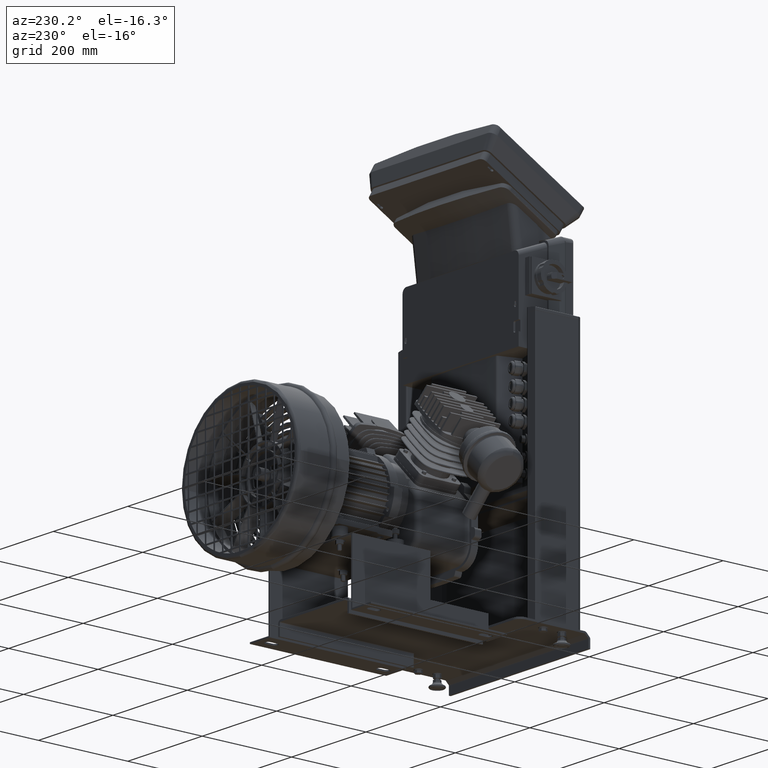
[diagram: clean part render]
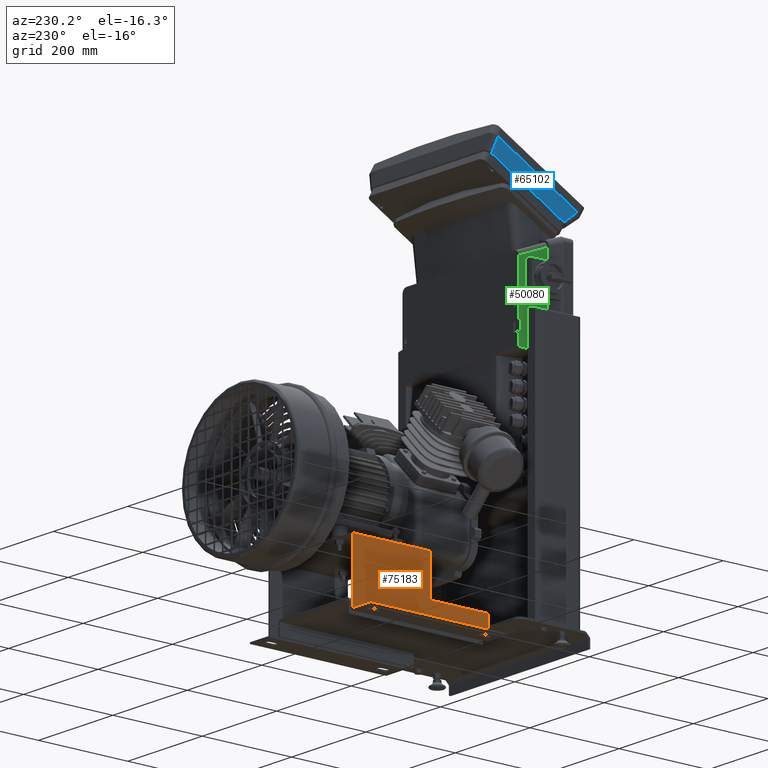
[diagram: same view with three faces highlighted in distinct colors, each labeled with its STEP entity id]
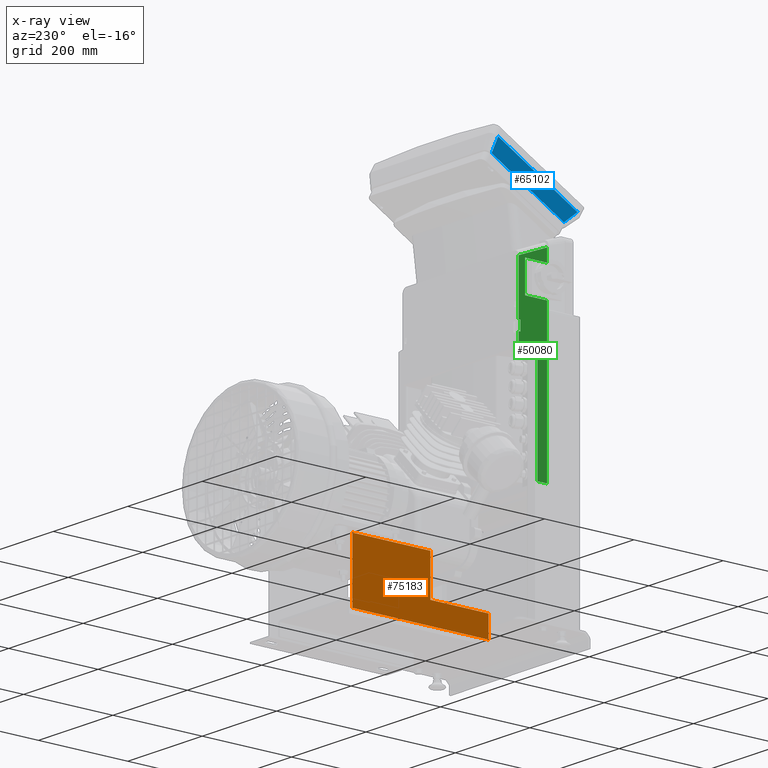
[diagram: x-ray of the same camera — body ghosted, the three highlighted faces saturated]
A machine part, auxiliary view with three faces highlighted in distinct colors.
The next image is the same camera in x-ray (body ghosted, the three faces saturated) — at least one of them is partly hidden behind the body in this view.
Their STEP definitions:

[orange] entity #75183 — the highlighted face is a freeform B-spline surface patch.
#74923=CARTESIAN_POINT('',(-111.93243870670767,457.30965765900055,-23.000000000000039));
#74924=VERTEX_POINT('',#74923);
#74931=CARTESIAN_POINT('',(-111.93243870670767,457.30965765900055,111.99999999899995));
#74932=VERTEX_POINT('',#74931);
#74933=CARTESIAN_POINT('',(-111.93243870670766,457.30965765900055,-23.000000000000039));
#74934=DIRECTION('',(0.0,0.0,1.0));
#74935=VECTOR('',#74934,134.99999999899998);
#74936=LINE('',#74933,#74935);
#74937=EDGE_CURVE('',#74924,#74932,#74936,.T.);
#74983=CARTESIAN_POINT('',(-111.93243870670767,282.30965765900055,111.99999999899995));
#74984=VERTEX_POINT('',#74983);
#74985=CARTESIAN_POINT('',(-111.93243870670767,282.30965765900055,111.99999999899995));
#74986=DIRECTION('',(0.0,1.0,0.0));
#74987=VECTOR('',#74986,175.0);
#74988=LINE('',#74985,#74987);
#74989=EDGE_CURVE('',#74984,#74932,#74988,.T.);
#75033=CARTESIAN_POINT('',(-111.93243870670766,152.30965765900055,-23.000000000000039));
#75034=VERTEX_POINT('',#75033);
#75035=CARTESIAN_POINT('',(-111.93243870670767,457.30965765900055,-23.000000000000032));
#75036=DIRECTION('',(0.0,-1.0,0.0));
#75037=VECTOR('',#75036,305.0);
#75038=LINE('',#75035,#75037);
#75039=EDGE_CURVE('',#74924,#75034,#75038,.T.);
#75151=CARTESIAN_POINT('',(-111.93243870670767,457.30965765900055,-23.000000000000043));
#75152=CARTESIAN_POINT('',(-111.93243870670767,457.30965765900055,111.99999999899997));
#75153=CARTESIAN_POINT('',(-111.93243870670767,152.30965765900055,-23.000000000000043));
#75154=CARTESIAN_POINT('',(-111.93243870670767,152.30965765900055,111.99999999899997));
#75155=B_SPLINE_SURFACE_WITH_KNOTS('',1,1,((#75151,#75153),(#75152,#75154)),.UNSPECIFIED.,.F.,.F.,.U.,(2,2),(2,2),(0.0,134.99999999900001),(0.0,305.0),.UNSPECIFIED.);
#75156=ORIENTED_EDGE('',*,*,#75039,.T.);
#75157=CARTESIAN_POINT('',(-111.93243870670766,152.30965765900055,23.999999999403325));
#75158=VERTEX_POINT('',#75157);
#75159=CARTESIAN_POINT('',(-111.93243870670766,152.30965765900055,23.999999999403325));
#75160=DIRECTION('',(0.0,0.0,-1.0));
#75161=VECTOR('',#75160,46.999999999403364);
#75162=LINE('',#75159,#75161);
#75163=EDGE_CURVE('',#75158,#75034,#75162,.T.);
#75164=ORIENTED_EDGE('',*,*,#75163,.F.);
#75165=CARTESIAN_POINT('',(-111.93243870670767,282.30965765900055,23.999999999399957));
#75166=VERTEX_POINT('',#75165);
#75167=CARTESIAN_POINT('',(-111.93243870670766,282.30965765900055,23.999999999403325));
#75168=DIRECTION('',(0.0,-1.0,0.0));
#75169=VECTOR('',#75168,130.0);
#75170=LINE('',#75167,#75169);
#75171=EDGE_CURVE('',#75166,#75158,#75170,.T.);
#75172=ORIENTED_EDGE('',*,*,#75171,.F.);
#75173=CARTESIAN_POINT('',(-111.93243870670767,282.30965765900055,111.99999999899995));
#75174=DIRECTION('',(0.0,0.0,-1.0));
#75175=VECTOR('',#75174,87.999999999599993);
#75176=LINE('',#75173,#75175);
#75177=EDGE_CURVE('',#74984,#75166,#75176,.T.);
#75178=ORIENTED_EDGE('',*,*,#75177,.F.);
#75179=ORIENTED_EDGE('',*,*,#74989,.T.);
#75180=ORIENTED_EDGE('',*,*,#74937,.F.);
#75181=EDGE_LOOP('',(#75156,#75164,#75172,#75178,#75179,#75180));
#75182=FACE_OUTER_BOUND('',#75181,.T.);
#75183=ADVANCED_FACE('',(#75182),#75155,.F.);

[blue] entity #65102 — the highlighted planar face has unit normal (-0.9425, 0.1671, -0.2894).
#63700=CARTESIAN_POINT('',(-164.69999999970759,174.54296380284524,862.9973098079048));
#63701=VERTEX_POINT('',#63700);
#63766=CARTESIAN_POINT('',(-164.69999999970753,-2.992243972964786,760.4973098079048));
#63767=VERTEX_POINT('',#63766);
#64056=CARTESIAN_POINT('',(-164.69999999970759,174.54296380284524,862.9973098079048));
#64057=DIRECTION('',(-1.386425E-016,-0.866025403784438,-0.5));
#64058=VECTOR('',#64057,205.00000000000014);
#64059=LINE('',#64056,#64058);
#64060=EDGE_CURVE('',#63701,#63767,#64059,.T.);
#64857=CARTESIAN_POINT('',(-154.69999999970773,18.901984661095014,740.57539342118366));
#64858=VERTEX_POINT('',#64857);
#64866=CARTESIAN_POINT('',(-154.69999999970759,180.84873516878514,834.07539342118378));
#64867=VERTEX_POINT('',#64866);
#64868=CARTESIAN_POINT('',(-154.69999999970759,180.84873516878514,834.07539342118378));
#64869=DIRECTION('',(-3.039755E-016,-0.866025403784438,-0.5));
#64870=VECTOR('',#64869,187.00000000000009);
#64871=LINE('',#64868,#64870);
#64872=EDGE_CURVE('',#64867,#64858,#64871,.T.);
#65075=CARTESIAN_POINT('',(-154.69999999970759,180.84873516878514,834.07539342118378));
#65076=DIRECTION('',(-0.320052851490617,-0.2018180106517,0.925654181014333));
#65077=VECTOR('',#65076,31.244839573919879);
#65078=LINE('',#65075,#65077);
#65079=EDGE_CURVE('',#64867,#63701,#65078,.T.);
#65086=CARTESIAN_POINT('',(-154.69999999970759,180.84873516878514,834.07539342118378));
#65087=DIRECTION('',(-0.942495681689853,0.167109163420187,-0.289441561454094));
#65088=DIRECTION('',(0.334218326840374,0.471247840844927,-0.816225203300545));
#65089=AXIS2_PLACEMENT_3D('',#65086,#65087,#65088);
#65090=PLANE('',#65089);
#65091=ORIENTED_EDGE('',*,*,#64872,.T.);
#65092=CARTESIAN_POINT('',(-164.69999999970753,-2.992243972964786,760.4973098079048));
#65093=DIRECTION('',(0.320052851490613,0.700731030551842,-0.637606614672779));
#65094=VECTOR('',#65093,31.244839573919883);
#65095=LINE('',#65092,#65094);
#65096=EDGE_CURVE('',#63767,#64858,#65095,.T.);
#65097=ORIENTED_EDGE('',*,*,#65096,.F.);
#65098=ORIENTED_EDGE('',*,*,#64060,.F.);
#65099=ORIENTED_EDGE('',*,*,#65079,.F.);
#65100=EDGE_LOOP('',(#65091,#65097,#65098,#65099));
#65101=FACE_OUTER_BOUND('',#65100,.T.);
#65102=ADVANCED_FACE('',(#65101),#65090,.T.);

[green] entity #50080 — the highlighted planar face has unit normal (-1, 0, 0).
#49908=CARTESIAN_POINT('',(-151.00116385651756,117.30963436532511,527.90169542980527));
#49909=VERTEX_POINT('',#49908);
#49916=CARTESIAN_POINT('',(-151.00116385651756,113.30963436532511,527.90169542980527));
#49917=VERTEX_POINT('',#49916);
#49918=CARTESIAN_POINT('',(-151.00116385651756,113.30963436532511,527.90169542980527));
#49919=DIRECTION('',(0.0,1.0,0.0));
#49920=VECTOR('',#49919,4.0);
#49921=LINE('',#49918,#49920);
#49922=EDGE_CURVE('',#49917,#49909,#49921,.T.);
#49939=CARTESIAN_POINT('',(-151.00116385651756,117.30963436532511,548.90169542980527));
#49940=VERTEX_POINT('',#49939);
#49948=CARTESIAN_POINT('',(-151.00116385651756,113.30963436532511,548.90169542980527));
#49949=VERTEX_POINT('',#49948);
#49956=CARTESIAN_POINT('',(-151.00116385651756,117.30963436532511,548.90169542980527));
#49957=DIRECTION('',(0.0,-1.0,0.0));
#49958=VECTOR('',#49957,4.0);
#49959=LINE('',#49956,#49958);
#49960=EDGE_CURVE('',#49940,#49949,#49959,.T.);
#49975=CARTESIAN_POINT('',(-151.00116385651756,113.30963436532511,548.90169542980527));
#49976=DIRECTION('',(0.0,0.0,-1.0));
#49977=VECTOR('',#49976,21.0);
#49978=LINE('',#49975,#49977);
#49979=EDGE_CURVE('',#49949,#49917,#49978,.T.);
#49984=CARTESIAN_POINT('',(-151.00116385651756,53.509634365325155,500.55169542980536));
#49985=DIRECTION('',(-1.0,0.0,0.0));
#49986=DIRECTION('',(0.0,0.0,1.0));
#49987=AXIS2_PLACEMENT_3D('',#49984,#49985,#49986);
#49988=PLANE('',#49987);
#49989=ORIENTED_EDGE('',*,*,#49960,.T.);
#49990=ORIENTED_EDGE('',*,*,#49979,.T.);
#49991=ORIENTED_EDGE('',*,*,#49922,.T.);
#49992=CARTESIAN_POINT('',(-151.00116385651756,117.30963436532511,500.55169542980536));
#49993=VERTEX_POINT('',#49992);
#49994=CARTESIAN_POINT('',(-151.00116385651751,117.3096343653251,500.55169542980536));
#49995=DIRECTION('',(0.0,0.0,1.0));
#49996=VECTOR('',#49995,27.349999999999909);
#49997=LINE('',#49994,#49996);
#49998=EDGE_CURVE('',#49993,#49909,#49997,.T.);
#49999=ORIENTED_EDGE('',*,*,#49998,.F.);
#50000=CARTESIAN_POINT('',(-151.00116385651756,75.30963436532511,500.55169542980536));
#50001=VERTEX_POINT('',#50000);
#50002=CARTESIAN_POINT('',(-151.00116385651756,75.30963436532511,500.55169542980536));
#50003=DIRECTION('',(0.0,1.0,0.0));
#50004=VECTOR('',#50003,42.0);
#50005=LINE('',#50002,#50004);
#50006=EDGE_CURVE('',#50001,#49993,#50005,.T.);
#50007=ORIENTED_EDGE('',*,*,#50006,.F.);
#50008=CARTESIAN_POINT('',(-151.00116385651756,75.30963436532511,266.55169542980542));
#50009=VERTEX_POINT('',#50008);
#50010=CARTESIAN_POINT('',(-151.00116385651756,75.30963436532511,266.55169542980542));
#50011=DIRECTION('',(0.0,0.0,1.0));
#50012=VECTOR('',#50011,233.99999999999994);
#50013=LINE('',#50010,#50012);
#50014=EDGE_CURVE('',#50009,#50001,#50013,.T.);
#50015=ORIENTED_EDGE('',*,*,#50014,.F.);
#50016=CARTESIAN_POINT('',(-151.00116385651756,53.509634365325155,266.55169542980542));
#50017=VERTEX_POINT('',#50016);
#50018=CARTESIAN_POINT('',(-151.00116385651756,53.509634365325155,266.55169542980542));
#50019=DIRECTION('',(0.0,1.0,0.0));
#50020=VECTOR('',#50019,21.799999999999955);
#50021=LINE('',#50018,#50020);
#50022=EDGE_CURVE('',#50017,#50009,#50021,.T.);
#50023=ORIENTED_EDGE('',*,*,#50022,.F.);
#50024=CARTESIAN_POINT('',(-151.00116385651756,53.509634365325155,594.75169542980541));
#50025=VERTEX_POINT('',#50024);
#50026=CARTESIAN_POINT('',(-151.00116385651754,53.509634365325148,594.75169542980541));
#50027=DIRECTION('',(0.0,0.0,-1.0));
#50028=VECTOR('',#50027,328.19999999999999);
#50029=LINE('',#50026,#50028);
#50030=EDGE_CURVE('',#50025,#50017,#50029,.T.);
#50031=ORIENTED_EDGE('',*,*,#50030,.F.);
#50032=CARTESIAN_POINT('',(-151.00116385651756,102.60963436532506,594.75169542980541));
#50033=VERTEX_POINT('',#50032);
#50034=CARTESIAN_POINT('',(-151.00116385651756,53.509634365325155,594.75169542980541));
#50035=DIRECTION('',(0.0,1.0,0.0));
#50036=VECTOR('',#50035,49.099999999999909);
#50037=LINE('',#50034,#50036);
#50038=EDGE_CURVE('',#50025,#50033,#50037,.T.);
#50039=ORIENTED_EDGE('',*,*,#50038,.T.);
#50040=CARTESIAN_POINT('',(-151.00116385651745,102.60963436532506,662.25169542980541));
#50041=VERTEX_POINT('',#50040);
#50042=CARTESIAN_POINT('',(-151.00116385651756,102.60963436532506,594.75169542980541));
#50043=DIRECTION('',(0.0,0.0,1.0));
#50044=VECTOR('',#50043,67.5);
#50045=LINE('',#50042,#50044);
#50046=EDGE_CURVE('',#50033,#50041,#50045,.T.);
#50047=ORIENTED_EDGE('',*,*,#50046,.T.);
#50048=CARTESIAN_POINT('',(-151.00116385651745,53.509634365325155,662.25169542980541));
#50049=VERTEX_POINT('',#50048);
#50050=CARTESIAN_POINT('',(-151.00116385651745,102.60963436532506,662.25169542980541));
#50051=DIRECTION('',(0.0,-1.0,0.0));
#50052=VECTOR('',#50051,49.099999999999909);
#50053=LINE('',#50050,#50052);
#50054=EDGE_CURVE('',#50041,#50049,#50053,.T.);
#50055=ORIENTED_EDGE('',*,*,#50054,.T.);
#50056=CARTESIAN_POINT('',(-151.00116385651745,53.509634365325155,689.76634800302952));
#50057=VERTEX_POINT('',#50056);
#50058=CARTESIAN_POINT('',(-151.00116385651751,53.509634365325141,689.76634800302952));
#50059=DIRECTION('',(0.0,0.0,-1.0));
#50060=VECTOR('',#50059,27.514652573224112);
#50061=LINE('',#50058,#50060);
#50062=EDGE_CURVE('',#50057,#50049,#50061,.T.);
#50063=ORIENTED_EDGE('',*,*,#50062,.F.);
#50064=CARTESIAN_POINT('',(-151.00116385651745,117.30963436532511,663.98947479474646));
#50065=VERTEX_POINT('',#50064);
#50066=CARTESIAN_POINT('',(-151.00116385651745,117.3096343653251,663.98947479474646));
#50067=DIRECTION('',(0.0,-0.927183854566788,0.374606593415912));
#50068=VECTOR('',#50067,68.810516582829777);
#50069=LINE('',#50066,#50068);
#50070=EDGE_CURVE('',#50065,#50057,#50069,.T.);
#50071=ORIENTED_EDGE('',*,*,#50070,.F.);
#50072=CARTESIAN_POINT('',(-151.00116385651748,117.3096343653251,548.90169542980527));
#50073=DIRECTION('',(0.0,0.0,1.0));
#50074=VECTOR('',#50073,115.08777936494118);
#50075=LINE('',#50072,#50074);
#50076=EDGE_CURVE('',#49940,#50065,#50075,.T.);
#50077=ORIENTED_EDGE('',*,*,#50076,.F.);
#50078=EDGE_LOOP('',(#49989,#49990,#49991,#49999,#50007,#50015,#50023,#50031,#50039,#50047,#50055,#50063,#50071,#50077));
#50079=FACE_OUTER_BOUND('',#50078,.T.);
#50080=ADVANCED_FACE('',(#50079),#49988,.T.);